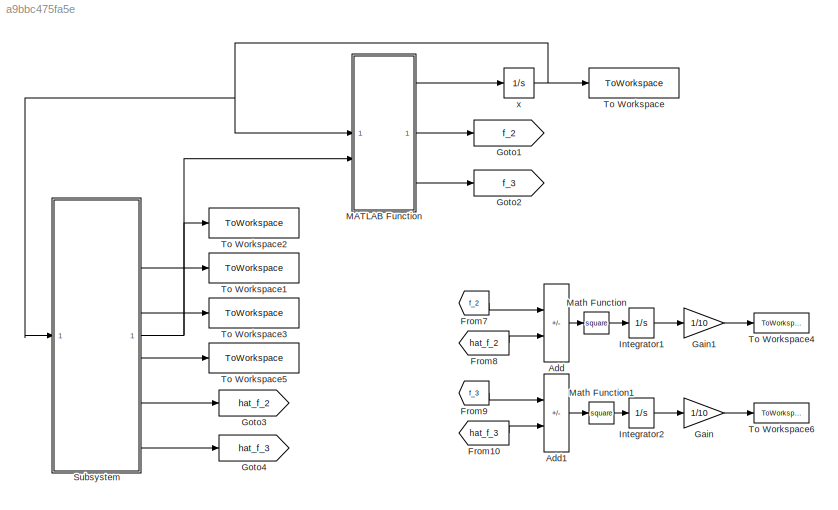
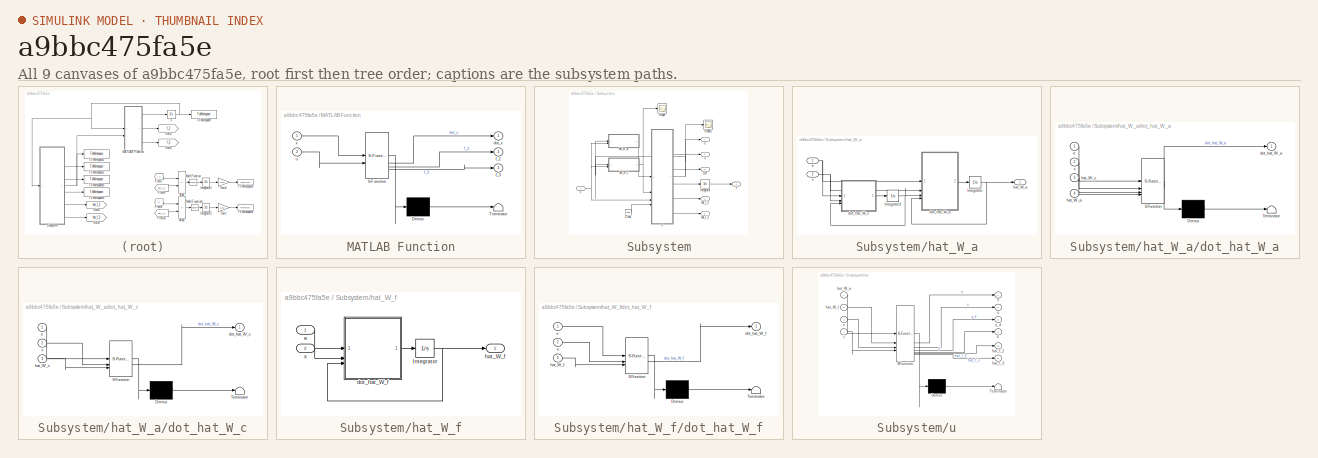
[diagram: thumbnail index - all 9 canvases of the model, root first then tree order]
MODEL slx_a9bbc475fa5e
KIND model
CONFIG AbsTol = auto
CONFIG EnableMultiTasking = off
CONFIG FixedStep = Step_T
CONFIG MaxStep = auto
CONFIG MinStep = auto
CONFIG RelTol = 1e-3
CONFIG SampleTimeConstraint = Unconstrained
CONFIG SolverName = FixedStepAuto
CONFIG StartTime = 0.0
CONFIG StopTime = 10
BLOCK [Sum] Add
  IconShape = rectangular
  Inputs = +-
BLOCK [Sum] Add1
  IconShape = rectangular
  Inputs = +-
BLOCK [From] From10
  GotoTag = hat_f_3
  NameLocation = top
BLOCK [From] From7
  GotoTag = f_2
  NameLocation = top
BLOCK [From] From8
  GotoTag = hat_f_2
  NameLocation = top
BLOCK [From] From9
  GotoTag = f_3
  NameLocation = top
BLOCK [Gain] Gain
  Gain = 1/10
BLOCK [Gain] Gain1
  Gain = 1/10
BLOCK [Goto] Goto1
  GotoTag = f_2
BLOCK [Goto] Goto2
  GotoTag = f_3
BLOCK [Goto] Goto3
  GotoTag = hat_f_2
BLOCK [Goto] Goto4
  GotoTag = hat_f_3
BLOCK [Integrator] Integrator1
BLOCK [Integrator] Integrator2
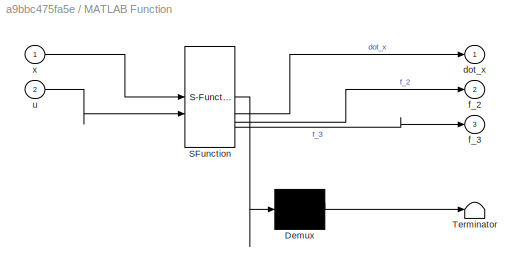
BLOCK [SubSystem] MATLAB Function
  ErrorFcn = Stateflow.Translate.translate
  PermitHierarchicalResolution = ExplicitOnly
  SFBlockType = MATLAB Function
  TreatAsAtomicUnit = on
BLOCK [Demux] MATLAB Function/ Demux 
  Outputs = 1
BLOCK [S-Function] MATLAB Function/ SFunction 
  EnableBusSupport = on
  FunctionName = sf_sfun
  Parameters = pam
  PortCounts = [2 4]
  SFcnIsStateOwnerBlock = off
  SFunctionDeploymentMode = off
  Tag = Stateflow S-Function 2
BLOCK [Terminator] MATLAB Function/ Terminator 
BLOCK [Outport] MATLAB Function/dot_x
BLOCK [Outport] MATLAB Function/f_2
  Port = 2
BLOCK [Outport] MATLAB Function/f_3
  Port = 3
BLOCK [Inport] MATLAB Function/u
  Port = 2
BLOCK [Inport] MATLAB Function/x
BLOCK [Math] Math Function
  Operator = square
BLOCK [Math] Math Function1
  Operator = square
BLOCK [SubSystem] Subsystem
BLOCK [Clock] Subsystem/Clock
BLOCK [Integrator] Subsystem/Integrator
BLOCK [Scope] Subsystem/Scope
  Floating = off
  NumInputPorts = 1
  ScopeSpecificationString = Simulink.scopes.TimeScopeBlockCfg('CurrentConfiguration', extmgr.ConfigurationSet(extmgr.Configuration('Core','General UI',true),extmgr.Configuration('Core','Source UI',true),extmgr.Configuration('Sources','WiredSimulink',true,'DataLoggingVariableName','ScopeData1'),extmgr.Configuration('Visuals','Time Domain',true,'SerializedDisplays',{struct('MinYLimReal','-0.39202','MaxYLimReal','0.39239','YLab...<+2352ch>
BLOCK [Scope] Subsystem/Scope1
  Floating = off
  NumInputPorts = 1
  ScopeSpecificationString = Simulink.scopes.TimeScopeBlockCfg('CurrentConfiguration', extmgr.ConfigurationSet(extmgr.Configuration('Core','General UI',true),extmgr.Configuration('Core','Source UI',true),extmgr.Configuration('Sources','WiredSimulink',true),extmgr.Configuration('Visuals','Time Domain',true,'SerializedDisplays',{struct('MinYLimReal','-17.46496','MaxYLimReal','19.1452','YLabelReal','','MinYLimMag','0.00000','Max...<+1439ch>
BLOCK [Outport] Subsystem/V
  Port = 4
BLOCK [Outport] Subsystem/e
  Port = 2
BLOCK [SubSystem] Subsystem/hat_W_a
BLOCK [Integrator] Subsystem/hat_W_a/Integrator
BLOCK [Integrator] Subsystem/hat_W_a/Integrator1
BLOCK [SubSystem] Subsystem/hat_W_a/dot_hat_W_a
  ErrorFcn = Stateflow.Translate.translate
  PermitHierarchicalResolution = ExplicitOnly
  SFBlockType = MATLAB Function
  TreatAsAtomicUnit = on
BLOCK [Demux] Subsystem/hat_W_a/dot_hat_W_a/ Demux 
  Outputs = 1
BLOCK [S-Function] Subsystem/hat_W_a/dot_hat_W_a/ SFunction 
  EnableBusSupport = on
  FunctionName = sf_sfun
  PortCounts = [4 2]
  SFcnIsStateOwnerBlock = off
  SFunctionDeploymentMode = off
  Tag = Stateflow S-Function 4
BLOCK [Terminator] Subsystem/hat_W_a/dot_hat_W_a/ Terminator 
BLOCK [Outport] Subsystem/hat_W_a/dot_hat_W_a/dot_hat_W_a
BLOCK [Inport] Subsystem/hat_W_a/dot_hat_W_a/e
BLOCK [Inport] Subsystem/hat_W_a/dot_hat_W_a/hat_W_a
  Port = 4
BLOCK [Inport] Subsystem/hat_W_a/dot_hat_W_a/hat_W_c
  Port = 3
BLOCK [Inport] Subsystem/hat_W_a/dot_hat_W_a/x
  Port = 2
BLOCK [SubSystem] Subsystem/hat_W_a/dot_hat_W_c
  ErrorFcn = Stateflow.Translate.translate
  PermitHierarchicalResolution = ExplicitOnly
  SFBlockType = MATLAB Function
  TreatAsAtomicUnit = on
BLOCK [Demux] Subsystem/hat_W_a/dot_hat_W_c/ Demux 
  Outputs = 1
BLOCK [S-Function] Subsystem/hat_W_a/dot_hat_W_c/ SFunction 
  EnableBusSupport = on
  FunctionName = sf_sfun
  PortCounts = [3 2]
  SFcnIsStateOwnerBlock = off
  SFunctionDeploymentMode = off
  Tag = Stateflow S-Function 5
BLOCK [Terminator] Subsystem/hat_W_a/dot_hat_W_c/ Terminator 
BLOCK [Outport] Subsystem/hat_W_a/dot_hat_W_c/dot_hat_W_c
BLOCK [Inport] Subsystem/hat_W_a/dot_hat_W_c/e
BLOCK [Inport] Subsystem/hat_W_a/dot_hat_W_c/hat_W_c
  Port = 3
BLOCK [Inport] Subsystem/hat_W_a/dot_hat_W_c/x
  Port = 2
BLOCK [Inport] Subsystem/hat_W_a/e
BLOCK [Outport] Subsystem/hat_W_a/hat_W_a
BLOCK [Inport] Subsystem/hat_W_a/x
  Port = 2
BLOCK [SubSystem] Subsystem/hat_W_f
BLOCK [Integrator] Subsystem/hat_W_f/Integrator
BLOCK [SubSystem] Subsystem/hat_W_f/dot_hat_W_f
  ErrorFcn = Stateflow.Translate.translate
  PermitHierarchicalResolution = ExplicitOnly
  SFBlockType = MATLAB Function
  TreatAsAtomicUnit = on
BLOCK [Demux] Subsystem/hat_W_f/dot_hat_W_f/ Demux 
  Outputs = 1
BLOCK [S-Function] Subsystem/hat_W_f/dot_hat_W_f/ SFunction 
  EnableBusSupport = on
  FunctionName = sf_sfun
  PortCounts = [3 2]
  SFcnIsStateOwnerBlock = off
  SFunctionDeploymentMode = off
  Tag = Stateflow S-Function 3
BLOCK [Terminator] Subsystem/hat_W_f/dot_hat_W_f/ Terminator 
BLOCK [Outport] Subsystem/hat_W_f/dot_hat_W_f/dot_hat_W_f
BLOCK [Inport] Subsystem/hat_W_f/dot_hat_W_f/e
BLOCK [Inport] Subsystem/hat_W_f/dot_hat_W_f/hat_W_f
  Port = 3
BLOCK [Inport] Subsystem/hat_W_f/dot_hat_W_f/x
  Port = 2
BLOCK [Inport] Subsystem/hat_W_f/e
BLOCK [Outport] Subsystem/hat_W_f/hat_W_f
BLOCK [Inport] Subsystem/hat_W_f/x
  Port = 2
BLOCK [Outport] Subsystem/hat_f_2
  Port = 5
BLOCK [Outport] Subsystem/hat_f_3
  Port = 6
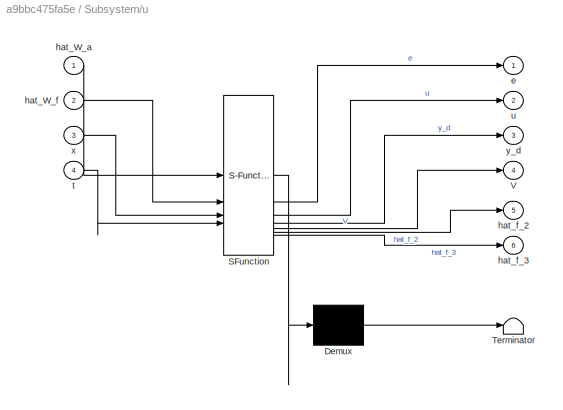
BLOCK [SubSystem] Subsystem/u
  ErrorFcn = Stateflow.Translate.translate
  PermitHierarchicalResolution = ExplicitOnly
  SFBlockType = MATLAB Function
  TreatAsAtomicUnit = on
BLOCK [Outport] Subsystem/u 
BLOCK [Demux] Subsystem/u/ Demux 
  Outputs = 1
BLOCK [S-Function] Subsystem/u/ SFunction 
  EnableBusSupport = on
  FunctionName = sf_sfun
  Parameters = pam
  PortCounts = [4 7]
  SFcnIsStateOwnerBlock = off
  SFunctionDeploymentMode = off
  Tag = Stateflow S-Function 1
BLOCK [Terminator] Subsystem/u/ Terminator 
BLOCK [Outport] Subsystem/u/V
  Port = 4
BLOCK [Outport] Subsystem/u/e
BLOCK [Inport] Subsystem/u/hat_W_a
BLOCK [Inport] Subsystem/u/hat_W_f
  Port = 2
BLOCK [Outport] Subsystem/u/hat_f_2
  Port = 5
BLOCK [Outport] Subsystem/u/hat_f_3
  Port = 6
BLOCK [Inport] Subsystem/u/t
  Port = 4
BLOCK [Outport] Subsystem/u/u
  Port = 2
BLOCK [Inport] Subsystem/u/x
  Port = 3
BLOCK [Outport] Subsystem/u/y_d
  Port = 3
BLOCK [Inport] Subsystem/x
BLOCK [Outport] Subsystem/y_d
  Port = 3
BLOCK [ToWorkspace] To Workspace
  FixptAsFi = on
  MaxDataPoints = inf
  SampleTime = -1
  SaveFormat = Timeseries
  VariableName = x
BLOCK [ToWorkspace] To Workspace1
  FixptAsFi = on
  MaxDataPoints = inf
  SampleTime = -1
  SaveFormat = Timeseries
  VariableName = e
BLOCK [ToWorkspace] To Workspace2
  FixptAsFi = on
  MaxDataPoints = inf
  SampleTime = -1
  SaveFormat = Timeseries
  VariableName = u
BLOCK [ToWorkspace] To Workspace3
  FixptAsFi = on
  MaxDataPoints = inf
  SampleTime = -1
  SaveFormat = Timeseries
  VariableName = y_d
BLOCK [ToWorkspace] To Workspace4
  FixptAsFi = on
  MaxDataPoints = inf
  SampleTime = -1
  SaveFormat = Timeseries
  VariableName = error_2
BLOCK [ToWorkspace] To Workspace5
  FixptAsFi = on
  MaxDataPoints = inf
  SampleTime = -1
  SaveFormat = Timeseries
  VariableName = V
BLOCK [ToWorkspace] To Workspace6
  FixptAsFi = on
  MaxDataPoints = inf
  SampleTime = -1
  SaveFormat = Timeseries
  VariableName = error_3
BLOCK [Integrator] x
  InitialCondition = [x_1_0;x_2_0;x_3_0]
LINE Add1:1 -> Math Function1:1
LINE Add:1 -> Math Function:1
LINE From10:1 -> Add1:2
LINE From7:1 -> Add:1
LINE From8:1 -> Add:2
LINE From9:1 -> Add1:1
LINE Gain1:1 -> To Workspace4:1
LINE Gain:1 -> To Workspace6:1
LINE Integrator1:1 -> Gain1:1
LINE Integrator2:1 -> Gain:1
LINE MATLAB Function:1 -> x:1
LINE MATLAB Function:2 -> Goto1:1
LINE MATLAB Function:3 -> Goto2:1
LINE Math Function1:1 -> Integrator2:1
LINE Math Function:1 -> Integrator1:1
LINE Subsystem/Clock:1 -> Subsystem/u:4
LINE Subsystem/Integrator:1 -> Subsystem/V:1
NET Subsystem/hat_W_a/Integrator1:1 -> Subsystem/hat_W_a/dot_hat_W_a:3, Subsystem/hat_W_a/dot_hat_W_c:3
NET Subsystem/hat_W_a/Integrator:1 -> Subsystem/hat_W_a/dot_hat_W_a:4, Subsystem/hat_W_a/hat_W_a:1
LINE Subsystem/hat_W_a/dot_hat_W_a:1 -> Subsystem/hat_W_a/Integrator:1
LINE Subsystem/hat_W_a/dot_hat_W_c:1 -> Subsystem/hat_W_a/Integrator1:1
NET Subsystem/hat_W_a/e:1 -> Subsystem/hat_W_a/dot_hat_W_a:1, Subsystem/hat_W_a/dot_hat_W_c:1
NET Subsystem/hat_W_a/x:1 -> Subsystem/hat_W_a/dot_hat_W_a:2, Subsystem/hat_W_a/dot_hat_W_c:2
LINE Subsystem/hat_W_a:1 -> Subsystem/u:1
NET Subsystem/hat_W_f/Integrator:1 -> Subsystem/hat_W_f/dot_hat_W_f:3, Subsystem/hat_W_f/hat_W_f:1
LINE Subsystem/hat_W_f/dot_hat_W_f:1 -> Subsystem/hat_W_f/Integrator:1
LINE Subsystem/hat_W_f/e:1 -> Subsystem/hat_W_f/dot_hat_W_f:1
LINE Subsystem/hat_W_f/x:1 -> Subsystem/hat_W_f/dot_hat_W_f:2
NET Subsystem/hat_W_f:1 -> Subsystem/Scope:1, Subsystem/u:2
NET Subsystem/u:1 -> Subsystem/Scope1:1, Subsystem/e:1, Subsystem/hat_W_a:1, Subsystem/hat_W_f:1
LINE Subsystem/u:2 -> Subsystem/u :1
LINE Subsystem/u:3 -> Subsystem/y_d:1
LINE Subsystem/u:4 -> Subsystem/Integrator:1
LINE Subsystem/u:5 -> Subsystem/hat_f_2:1
LINE Subsystem/u:6 -> Subsystem/hat_f_3:1
NET Subsystem/x:1 -> Subsystem/hat_W_a:2, Subsystem/hat_W_f:2, Subsystem/u:3
NET Subsystem:1 -> MATLAB Function:2, To Workspace2:1
LINE Subsystem:2 -> To Workspace1:1
LINE Subsystem:3 -> To Workspace3:1
LINE Subsystem:4 -> To Workspace5:1
LINE Subsystem:5 -> Goto3:1
LINE Subsystem:6 -> Goto4:1
NET x:1 -> MATLAB Function:1, Subsystem:1, To Workspace:1
note: NET lines group one-source signal fan-out (src -> all destinations, sorted); 1:1 wires keep LINE
CHART Subsystem/u states=1 transitions=1
  STATE_LABEL 'eML_blk_kernel()'
  STATE_LABEL 'SCRIPT:\nfunction [e,u,y_d,V,hat_f_2,hat_f_3]  = fcn(hat_W_a,hat_W_f,x,t,pam)\n\ny_d = sin(t);\ndot_y_d = cos(t);\n\nlambda_1=6;\nlambda_2=15;\nlambda_3=10;\n\nx_1 = x(1);\nx_2 = x(2);\nx_3 = x(3);\n\nhat_W_a_1 = hat_W_a(:,1);\nhat_W_a_2 = hat_W_a(:,2);\nhat_W_a_3 = hat_W_a(:,3);\n\nhat_W_f_1 = hat_W_f(:,1);\nhat_W_f_2 = hat_W_f(:,2);\nhat_W_f_3 = hat_W_f(:,3);\n\n%% 第一阶\ne_1 = x_1 - y_d;\n\nS_f1 = RBF_based(x_1);\nS_j1 = ...<+481ch>'
CHART MATLAB Function states=1 transitions=1
  STATE_LABEL 'eML_blk_kernel()'
  STATE_LABEL 'SCRIPT:\nfunction [dot_x,f_2,f_3]  = fcn(x,u,pam)\n\nx_1 = x(1);\nx_2 = x(2);\nx_3 = x(3);\n\ndot_x_1 = x_2;\ndot_x_2 = x_3+pam.M/pam.D*sin(x_1)-pam.B/pam.D*x_2;\ndot_x_3 = u+pam.K_m/pam.L*x_2-pam.J/pam.L*x_3;\n\ndot_x = [dot_x_1;dot_x_2;dot_x_3];\nf_2 = pam.M/pam.D*sin(x_1)-pam.B/pam.D*x_2;\nf_3 = pam.K_m/pam.L*x_2-pam.J/pam.L*x_3;'
CHART Subsystem/hat_W_f/dot_hat_W_f states=1 transitions=1
  STATE_LABEL 'eML_blk_kernel()'
  STATE_LABEL 'SCRIPT:\nfunction dot_hat_W_f = fcn(e,x,hat_W_f)\n\nx_1 = x(1);\nx_2 = x(2);\nx_3 = x(3);\n\ne_1 = e(1);\ne_2 = e(2);\ne_3 = e(3);\n\nhat_W_f_1 = hat_W_f(:,1);\nhat_W_f_2 = hat_W_f(:,2);\nhat_W_f_3 = hat_W_f(:,3);\n\n%% 第一阶\nS_f_1 = RBF_based(x_1);\ndot_hat_W_f_1 = 1*(S_f_1*e_1-1*hat_W_f_1);\n \n%% 第二阶\nS_f_2 = RBF_based([x_1;x_2]);\ndot_hat_W_f_2 = 1*(S_f_2*e_2-1*hat_W_f_2);\n\n%% 第三阶\nS_f_3 = RBF_based([x_1;x_2;x_3]);\n...<+102ch>'
CHART Subsystem/hat_W_a/dot_hat_W_a states=1 transitions=1
  STATE_LABEL 'eML_blk_kernel()'
  STATE_LABEL "SCRIPT:\nfunction dot_hat_W_a = fcn(e,x,hat_W_c,hat_W_a)\n\nx_1 = x(1);\nx_2 = x(2);\nx_3 = x(3);\n\ne_1 = e(1);\ne_2 = e(2);\ne_3 = e(3);\n\nhat_W_a_1 = hat_W_a(:,1);\nhat_W_a_2 = hat_W_a(:,2);\nhat_W_a_3 = hat_W_a(:,3);\n\nhat_W_c_1 = hat_W_c(:,1);\nhat_W_c_2 = hat_W_c(:,2);\nhat_W_c_3 = hat_W_c(:,3);\n\n%% 第一阶\nS_j1 = RBF_based([x_1;e_1]);\ndot_hat_W_a_1 = -S_j1*S_j1'*(5*(hat_W_a_1-hat_W_c_1)+5*hat_W_c_1);\n \n%% 第二阶...<+272ch>"
CHART Subsystem/hat_W_a/dot_hat_W_c states=1 transitions=1
  STATE_LABEL 'eML_blk_kernel()'
  STATE_LABEL "SCRIPT:\nfunction dot_hat_W_c = fcn(e,x,hat_W_c)\n\nx_1 = x(1);\nx_2 = x(2);\nx_3 = x(3);\n\ne_1 = e(1);\ne_2 = e(2);\ne_3 = e(3);\n\nhat_W_c_1 = hat_W_c(:,1);\nhat_W_c_2 = hat_W_c(:,2);\nhat_W_c_3 = hat_W_c(:,3);\n\n%% 第一阶\nS_j1 = RBF_based([x_1;e_1]);\ndot_hat_W_c_1 = -5*S_j1*S_j1'*hat_W_c_1;\n \n%% 第二阶\nS_j2 = RBF_based([x_1;x_2;e_2]);\ndot_hat_W_c_2 = -5*S_j2*S_j2'*hat_W_c_2;\n\n%% 第三阶\nS_j3 = RBF_based([x_1;x_2;x_3;...<+107ch>"
CHART  states=0 transitions=0
CHART  states=0 transitions=0
CHART  states=0 transitions=0
CHART  states=0 transitions=0
CHART  states=0 transitions=0
